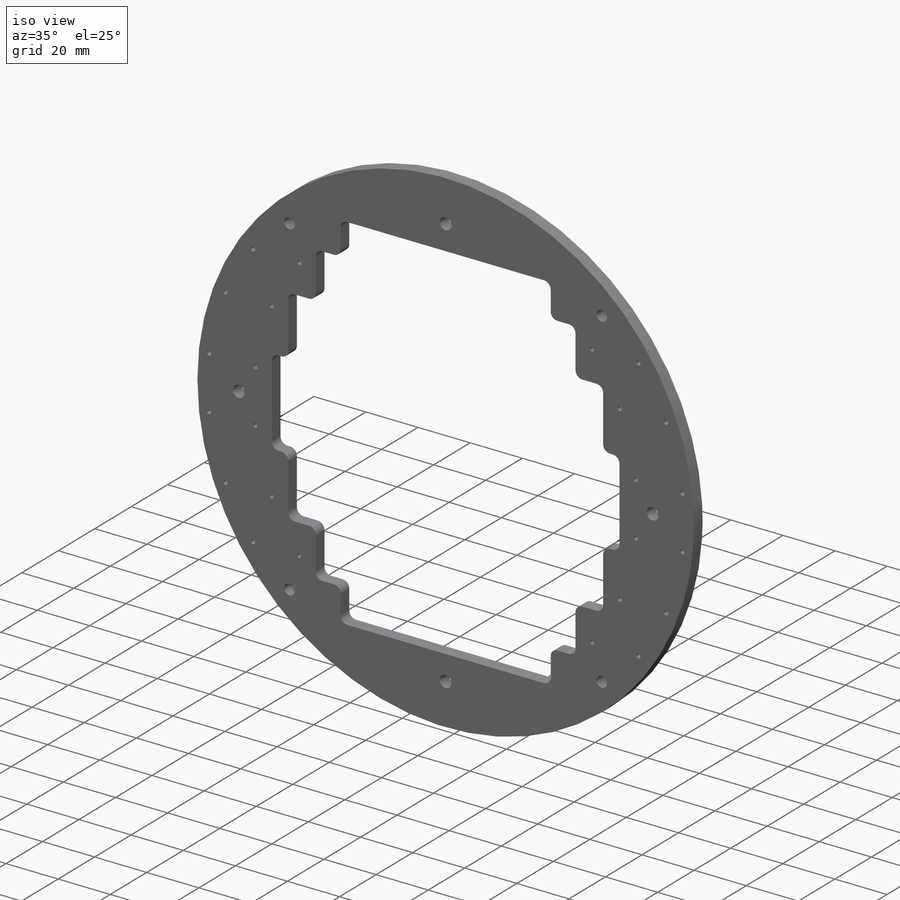
[diagram: iso view]
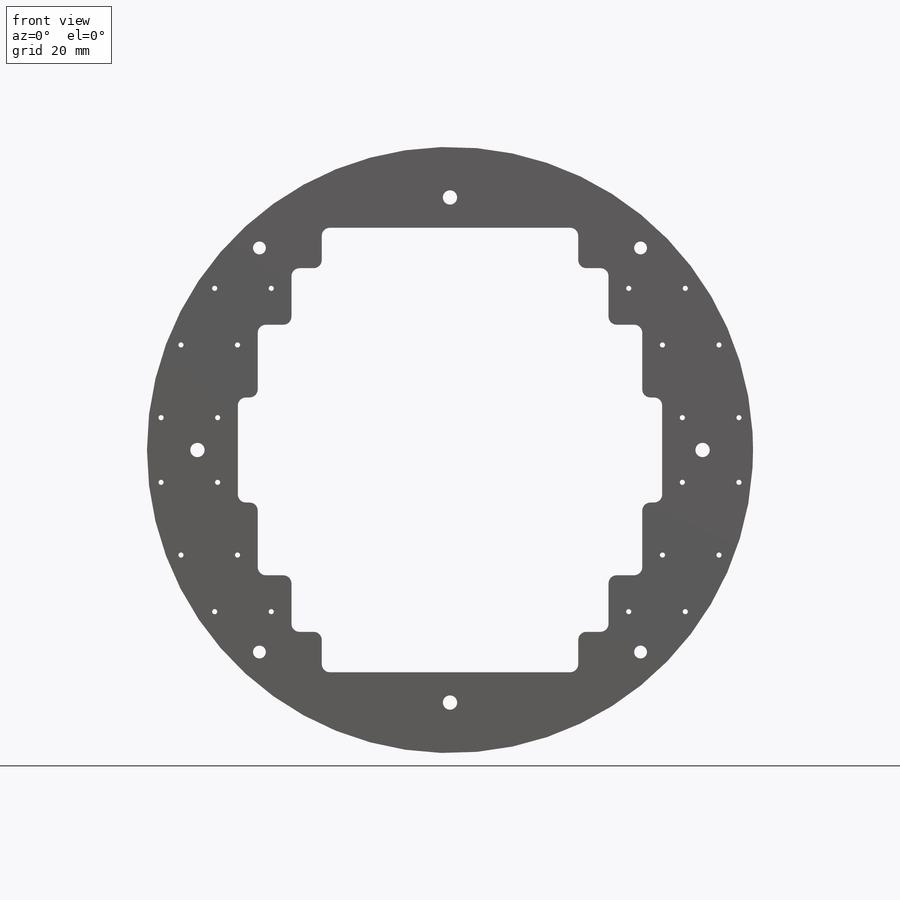
[diagram: front view]
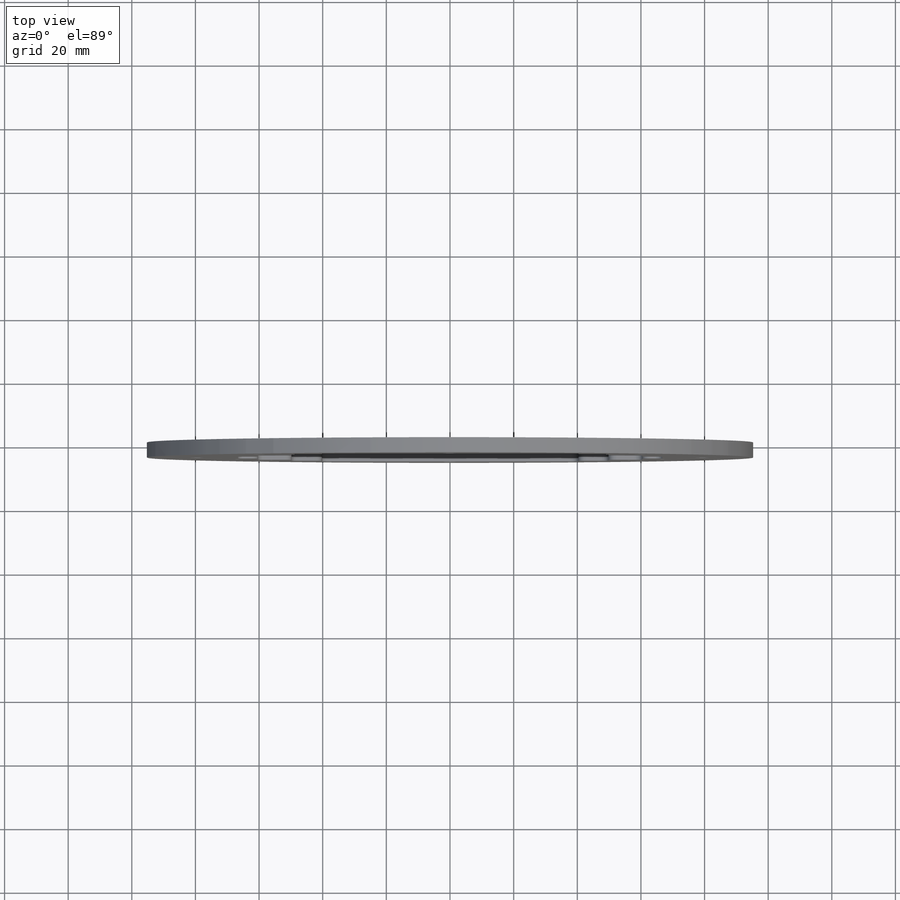
[diagram: top view]
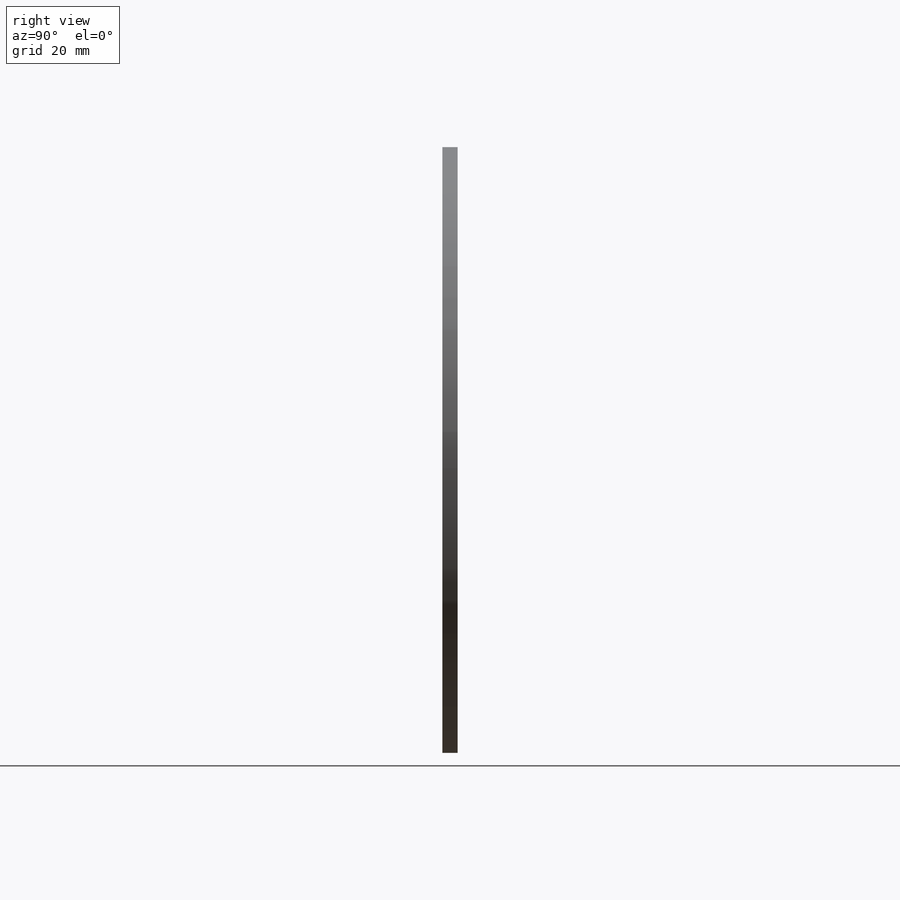
[diagram: right view]
SOLIDWORKS PART (.sldprt)
format: sldprt  version: not decoded by parser v0  size: 677,376 bytes
history: native  units: mm
features: thread x30, sketch x10, hole x3, cut_extrude x3, material x1, extrude x1, mirror x1, fillet x1 (+11 scaffold rows collapsed)
feature tree (61):
  scaffold x11  (default folders/planes/origin — collapsed)
  material  "Delrin 2700 NC010, Low Viscosity Acetal Copolymer (SS)"
  sketch  "Sketch1"  dims[D1=190.5mm]
  extrude  "Boss-Extrude1"  Depth=4.7625mm
  hole  "M2x0.4 Tapped Hole1"  Diameter=1.6mm Depth=5.334mm
  sketch  "Sketch3"  dims[c1.D4=165.1mm c1.D1=17.78mm c1.D2=38.1mm c1.D3=50.8mm c2.D2=33.02mm c2.D3=17.78mm c2.D5=50.8mm c2.D6=17.78mm c2.D7=10.16mm]
  sketch  "Sketch2"  dims[hole-wizard template sketch: 47 standard entries collapsed; hole parameters kept: c15.Tap Drill Depth=5.334mm c15.D3=~14.816244mm c15.Drill Angle=180.0deg]
  thread  "Hole Thread1"  Diameter=4.064mm  [1 undecoded]
  thread  "Hole Thread2"  Diameter=4.064mm  [1 undecoded]
  thread  "Hole Thread3"  Diameter=4.064mm  [1 undecoded]
  thread  "Hole Thread4"  Diameter=4.064mm  [1 undecoded]
  thread  "Hole Thread5"  Diameter=4.064mm  [1 undecoded]
  thread  "Hole Thread6"  Diameter=4.064mm  [1 undecoded]
  thread  "Hole Thread7"  Diameter=4.064mm  [1 undecoded]
  thread  "Hole Thread8"  Diameter=4.064mm  [1 undecoded]
  thread  "Hole Thread9"  Diameter=4.064mm  [1 undecoded]
  thread  "Hole Thread10"  Diameter=4.064mm  [1 undecoded]
  thread  "Hole Thread11"  Diameter=4.064mm  [1 undecoded]
  thread  "Hole Thread12"  Diameter=4.064mm  [1 undecoded]
  thread  "Hole Thread13"  Diameter=4.064mm  [1 undecoded]
  thread  "Hole Thread14"  Diameter=4.064mm  [1 undecoded]
  thread  "Hole Thread15"  Diameter=4.064mm  [1 undecoded]
  thread  "Hole Thread16"  Diameter=4.064mm  [1 undecoded]
  thread  "Hole Thread17"  Diameter=4.064mm  [1 undecoded]
  thread  "Hole Thread18"  Diameter=4.064mm  [1 undecoded]
  thread  "Hole Thread19"  Diameter=4.064mm  [1 undecoded]
  thread  "Hole Thread20"  Diameter=4.064mm  [1 undecoded]
  thread  "Hole Thread21"  Diameter=4.064mm  [1 undecoded]
  thread  "Hole Thread22"  Diameter=4.064mm  [1 undecoded]
  thread  "Hole Thread23"  Diameter=4.064mm  [1 undecoded]
  thread  "Hole Thread24"  Diameter=4.064mm  [1 undecoded]
  hole  "#12-24 Tapped Hole1"  Diameter=4.4958mm Depth=14.224mm
  sketch  "Sketch7"  dims[D1=88.9mm D2=88.9mm D3=88.9mm]
  sketch  "Sketch6"  dims[hole-wizard template sketch: 46 standard entries collapsed; hole parameters kept: c15.Tap Drill Dia.=4.4958mm c15.Tap Drill Depth=14.224mm c15.D3=~14.816244mm c15.Drill Angle=180.0deg]
  thread  "Hole Thread31"  Diameter=4.7625mm  [1 undecoded]
  thread  "Hole Thread32"  Diameter=4.7625mm  [1 undecoded]
  thread  "Hole Thread33"  Diameter=4.7625mm  [1 undecoded]
  thread  "Hole Thread34"  Diameter=4.7625mm  [1 undecoded]
  sketch  "Sketch8"  dims[c1.D2=3.175mm c1.D7=5.08mm c1.D11=5.08mm c1.D1=10.16mm c2.D2=10.16mm c2.D3=10.16mm c2.D4=76.2mm c2.D5=50.8mm c2.D6=133.35mm c2.D7=15.24mm c2.D8=2.54mm c2.D9=~149.404767mm c3.D7=6.35mm c3.D9=6.35mm c3.D8=133.35mm c3.D10=10.16mm]
  cut_extrude  "Cut-Extrude1"  [1 undecoded]
  hole  "#10-32 Tapped Hole1"  Diameter=4.0386mm Depth=11.938mm
  sketch  "Sketch10"  dims[D1=63.5mm D2=~119.783705mm]
  sketch  "Sketch9"  dims[hole-wizard template sketch: 47 standard entries collapsed; hole parameters kept: c15.Tap Drill Depth=11.938mm c15.D3=~14.816244mm c15.Drill Angle=180.0deg]
  thread  "Hole Thread35"  Diameter=4.7625mm  [1 undecoded]
  thread  "Hole Thread36"  Diameter=4.7625mm  [1 undecoded]
  mirror  "Mirror1"
  sketch  "Sketch11"  dims[c1.D3=1.6mm c1.D2=1.6mm c2.D3=1.6mm c2.D5=1.6mm c2.D1=~144.083729mm c2.D2=~103.671682mm c3.D3=~5.612296mm c3.D2=6.35mm c4.D3=6.35mm c4.D4=6.35mm c4.D5=~102.196275mm c4.D1=6.35mm c5.D5=6.35mm c5.D6=6.35mm]
  cut_extrude  "Cut-Extrude2"  [1 undecoded]
  sketch  "Sketch12"  dims[D1=9.525mm D2=9.525mm]
  cut_extrude  "Cut-Extrude3"  [1 undecoded]
  fillet  "Fillet1"  Radius=2.54mm
decode coverage: 45 of 49 modeling features carry decoded parameters
note: ~ marks probable driven/reference dimensions
note: 33 parameter values undecoded
summary: no parameter record found for 3 features
note: suppression state not decoded; provenance and decode notes live in map.json
